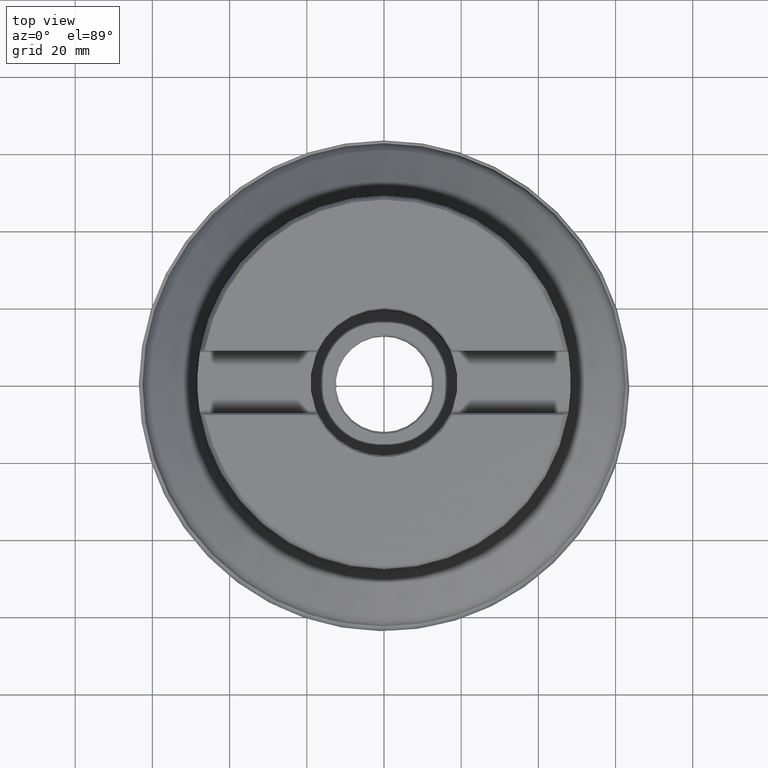
[diagram: clean part render]
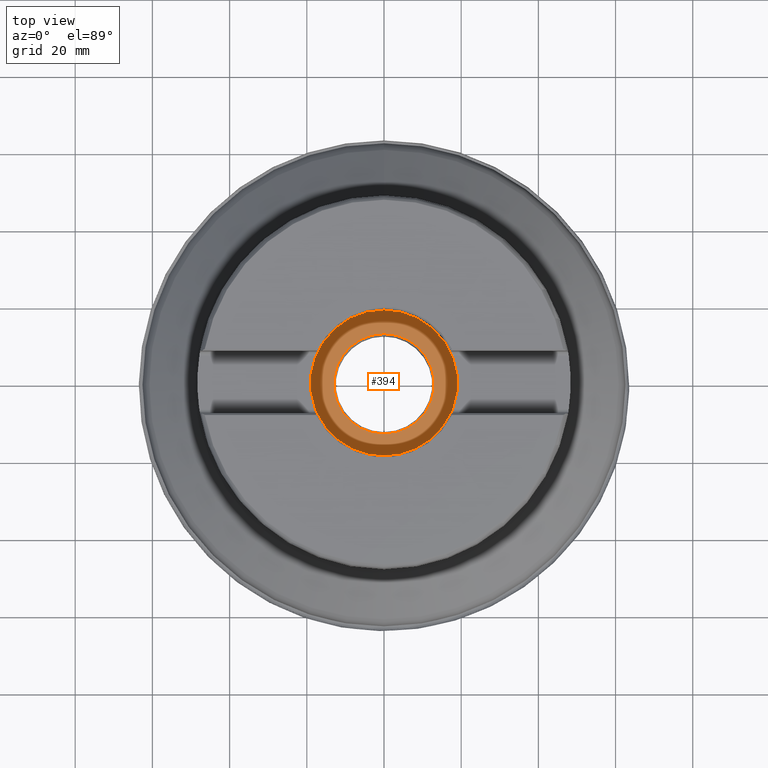
[diagram: same view with one face highlighted and labeled with its STEP entity id]
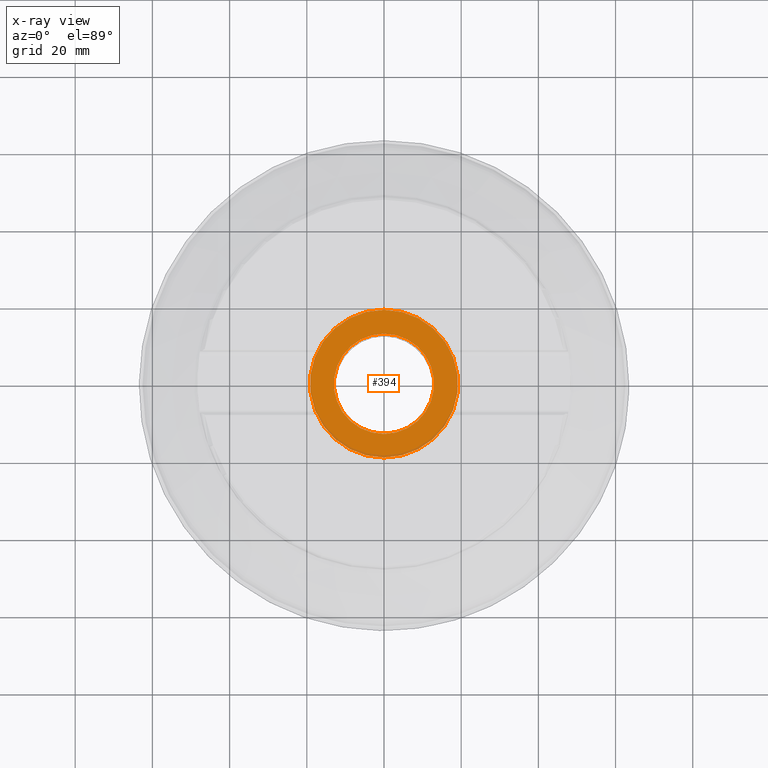
[diagram: x-ray of the same camera — body ghosted, the highlighted face saturated]
A machine part, top view. The second image highlights one B-rep face of the part: STEP entity #394.
The next image is the same camera in x-ray: the body ghosted, the highlighted face saturated — about 3% of this face is hidden behind the body in this view.
In plain terms, the highlighted planar face has unit normal (-0, -0, -1).
Its self-contained STEP definition (entity closure, byte-faithful):
#194=FACE_BOUND('',#520,.T.);
#195=FACE_BOUND('',#521,.T.);
#299=PLANE('',#1271);
#394=ADVANCED_FACE('',(#194,#195),#299,.F.);
#520=EDGE_LOOP('',(#819));
#521=EDGE_LOOP('',(#820));
#641=CIRCLE('',#1269,19.15);
#642=CIRCLE('',#1270,13.);
#819=ORIENTED_EDGE('',*,*,#1095,.T.);
#820=ORIENTED_EDGE('',*,*,#1096,.T.);
#976=VERTEX_POINT('',#2268);
#977=VERTEX_POINT('',#2270);
#1095=EDGE_CURVE('',#976,#976,#641,.T.);
#1096=EDGE_CURVE('',#977,#977,#642,.T.);
#1269=AXIS2_PLACEMENT_3D('',#2267,#1492,#1493);
#1270=AXIS2_PLACEMENT_3D('',#2269,#1494,#1495);
#1271=AXIS2_PLACEMENT_3D('',#2271,#1496,#1497);
#1492=DIRECTION('',(4.47319432837584E-16,1.56003342320133E-15,1.));
#1493=DIRECTION('',(-1.08268785724004E-15,1.,-1.44937731674302E-15));
#1494=DIRECTION('',(-4.47319432837584E-16,-1.56003342320133E-15,-1.));
#1495=DIRECTION('',(-1.08268785724004E-15,1.,-1.60128320859398E-15));
#1496=DIRECTION('',(-4.47319432837584E-16,-1.56003342320133E-15,-1.));
#1497=DIRECTION('',(-1.08246744900953E-15,1.,-1.56125112837913E-15));
#2267=CARTESIAN_POINT('',(1.49409163762082E-14,5.21066763683475E-14,33.401));
#2268=CARTESIAN_POINT('',(-5.79255608993866E-15,19.15,33.401));
#2269=CARTESIAN_POINT('',(1.49409163762082E-14,5.21066763683475E-14,33.401));
#2270=CARTESIAN_POINT('',(8.65974232087598E-16,13.0000000000001,33.401));
#2271=CARTESIAN_POINT('',(-12.5,3.8573078152847E-14,33.401));